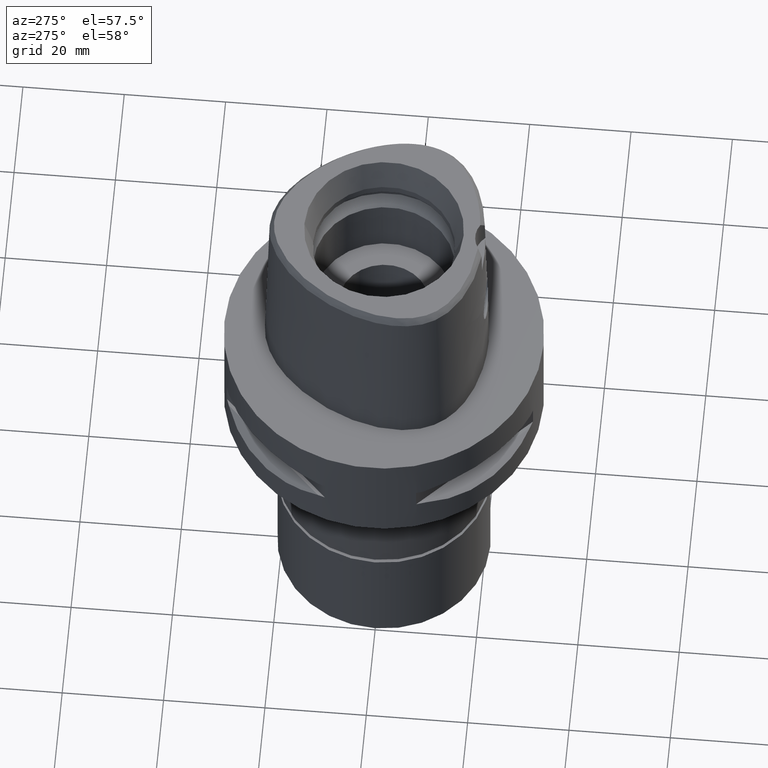
[diagram: clean part render]
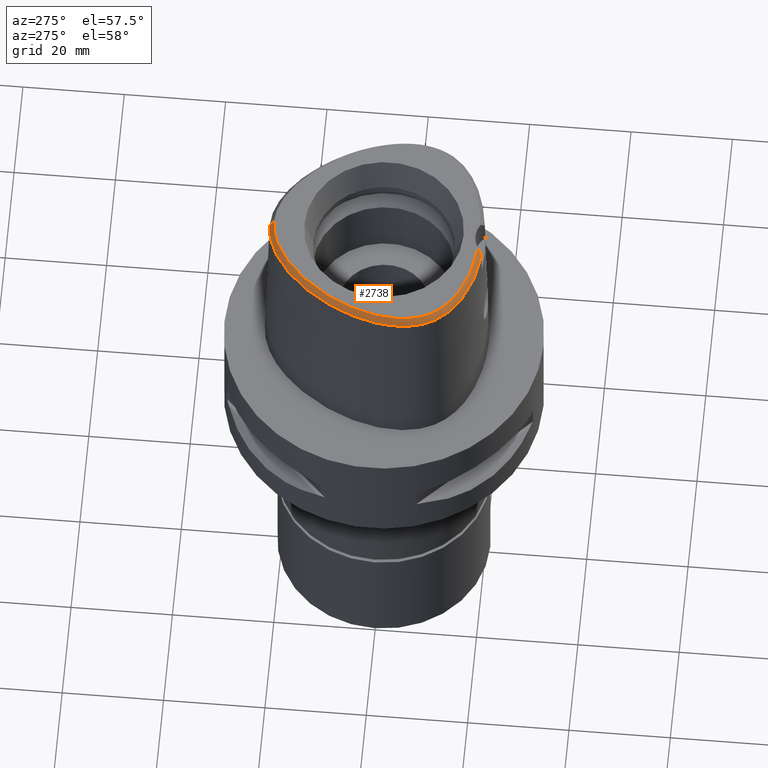
[diagram: same view with one face highlighted and labeled with its STEP entity id]
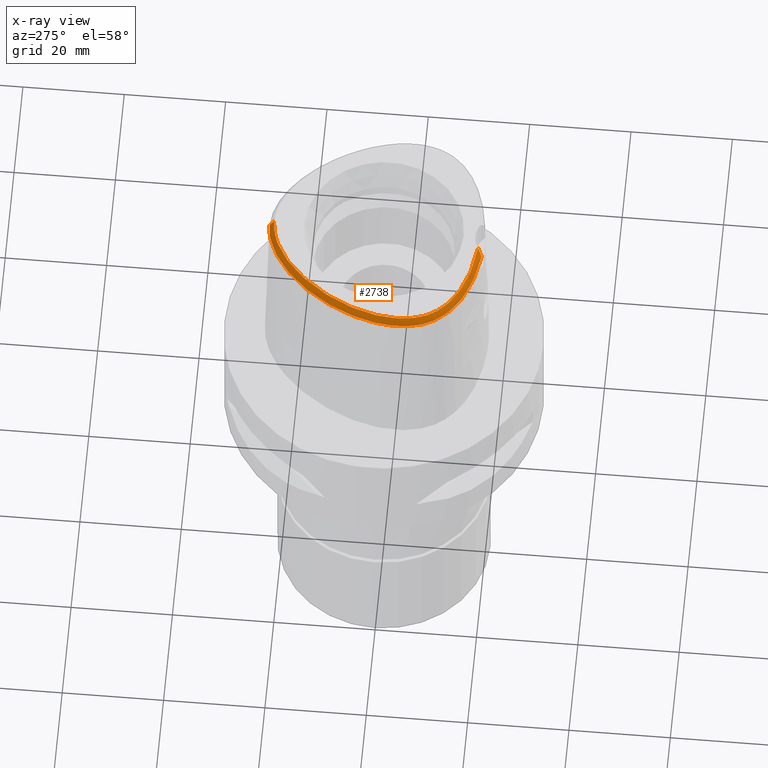
[diagram: x-ray of the same camera — body ghosted, the highlighted face saturated]
A machine part, auxiliary view. The second image highlights one B-rep face of the part: STEP entity #2738.
The next image is the same camera in x-ray: the body ghosted, the highlighted face saturated — about 0% of this face is hidden behind the body in this view.
In plain terms, the highlighted face is a freeform B-spline surface patch.
Its self-contained STEP definition (entity closure, byte-faithful):
#2 = CARTESIAN_POINT ( 'NONE',  ( -2.713933477771999669, -19.74210264567999928, 36.37830518908999977 ) ) ;
#17 = B_SPLINE_CURVE_WITH_KNOTS ( 'NONE', 3,
 ( #577, #1018, #206, #4736, #1360, #4755, #3266, #3922, #4685, #1383, #2146, #182, #2904, #1691, #272, #224, #3586, #1737, #2881, #3947, #4366, #3201, #993, #557, #2517, #1713, #2545, #621, #3632, #4388, #4015, #643, #3242, #2169, #2811, #4318, #3176, #3222, #4662, #972, #1313, #2077, #951, #2493, #3607, #596, #1288, #3991, #4296, #2473, #249, #2102, #926, #2447, #1757, #3562, #4713, #1341, #2863, #4346 ),
 .UNSPECIFIED., .F., .F.,
 ( 4, 1, 1, 1, 1, 1, 1, 1, 1, 1, 1, 1, 1, 1, 1, 1, 1, 1, 1, 1, 1, 1, 1, 1, 1, 1, 1, 1, 1, 1, 1, 1, 1, 1, 1, 1, 1, 1, 1, 1, 1, 1, 1, 1, 1, 1, 1, 1, 1, 1, 1, 1, 1, 1, 1, 1, 1, 4 ),
 ( 0.0000000000000000000, 0.005420919554200098744, 0.02318126027639999531, 0.04094160099879995407, 0.05870194172099996166, 0.07646228244330000035, 0.09422262316550000794, 0.1119829638877999356, 0.1297433046099999432, 0.1475036453321999508, 0.1652639860544999895, 0.1830243267768000281, 0.2007846674991000668, 0.2185450082212999634, 0.2363053489436000021, 0.2540656896658000097, 0.2718260303881000484, 0.2895863711103000560, 0.3073467118325999836, 0.3251070525547999912, 0.3428673932771000299, 0.3606277339994000686, 0.3783880747216000762, 0.3961484154438998928, 0.4139087561661000114, 0.4316690968884000501, 0.4494294376106000577, 0.4671897783328999854, 0.4849501190552000240, 0.5027104597774000316, 0.5204708004996999593, 0.5382311412219000779, 0.5559914819442000056, 0.5737518226664000132, 0.5915121633886999408, 0.6092725041108999484, 0.6270328448331999871, 0.6447931855555000258, 0.6625535262777000334, 0.6803138669999999610, 0.6980742077221999686, 0.7158345484445000073, 0.7335948891667000149, 0.7513552298890000536, 0.7691155706112000612, 0.7868759113336000199, 0.8046362520558000275, 0.8223965927780999552, 0.8401569335002999628, 0.8579172742224999704, 0.8756776149448000091, 0.8934379556670000166, 0.9111982963893099363, 0.9289586371115700070, 0.9467189778338299666, 0.9644793185560800453, 0.9822396592783400049, 1.000000000000000000 ),
 .UNSPECIFIED. ) ;
#22 = CARTESIAN_POINT ( 'NONE',  ( -11.68314997386000087, -17.69589950871000283, 36.37830394384000243 ) ) ;
#49 = CARTESIAN_POINT ( 'NONE',  ( -11.28558660722000084, -16.72939171935999880, 38.14351292079000189 ) ) ;
#72 = CARTESIAN_POINT ( 'NONE',  ( -7.579260225850000587, -17.92755936757999891, 38.14351263783999713 ) ) ;
#95 = CARTESIAN_POINT ( 'NONE',  ( -15.66555246984999883, -14.23148663949999992, 38.14351288593999811 ) ) ;
#119 = CARTESIAN_POINT ( 'NONE',  ( -11.55062885164999820, -17.37373024559000001, 36.96670693616000136 ) ) ;
#145 = CARTESIAN_POINT ( 'NONE',  ( -4.793558551987000094, -19.17277669614000146, 36.96670711712999946 ) ) ;
#151 = CARTESIAN_POINT ( 'NONE',  ( -8.527531195668998976, 18.37837735669999972, 38.14351294475000742 ) ) ;
#177 = CARTESIAN_POINT ( 'NONE',  ( -4.472403475189000055, 21.43832635061000147, 36.96670708015999907 ) ) ;
#182 = CARTESIAN_POINT ( 'NONE',  ( -14.21001600787764474, -15.34519100085681309, 37.99999999999730704 ) ) ;
#203 = CARTESIAN_POINT ( 'NONE',  ( -16.04648083685999893, 11.78857774169999928, 36.37830519164000265 ) ) ;
#206 = CARTESIAN_POINT ( 'NONE',  ( -3.522896839653902212, -18.70811514173524159, 38.00000000000187583 ) ) ;
#221 = CARTESIAN_POINT ( 'NONE',  ( -6.174710694951999201, 20.67571214691000137, 36.96670749985000270 ) ) ;
#224 = CARTESIAN_POINT ( 'NONE',  ( -16.93638123745795099, -13.22593246128684719, 38.00000000000067502 ) ) ;
#244 = CARTESIAN_POINT ( 'NONE',  ( -12.14865601852999966, 16.60212235002000369, 36.37830797903999525 ) ) ;
#249 = CARTESIAN_POINT ( 'NONE',  ( -5.893543501601039125, 20.13235399352011257, 38.00000000000871125 ) ) ;
#265 = CARTESIAN_POINT ( 'NONE',  ( -20.07612134433000151, -1.022415273861000173, 38.14351285349000165 ) ) ;
#271 = CARTESIAN_POINT ( 'NONE',  ( -2.127538726767999933, -19.78165970094000059, 36.37830508504000449 ) ) ;
#272 = CARTESIAN_POINT ( 'NONE',  ( -16.36032397153796936, -13.76458520345332914, 38.00000000000267875 ) ) ;
#286 = ORIENTED_EDGE ( 'NONE', *, *, #2619, .F. ) ;
#291 = CARTESIAN_POINT ( 'NONE',  ( -20.23684805378000107, 1.672403949180999883, 36.96670979241000765 ) ) ;
#294 = CARTESIAN_POINT ( 'NONE',  ( -2.315022502934000137, -19.42125977056000252, 36.96670769700000392 ) ) ;
#315 = CARTESIAN_POINT ( 'NONE',  ( -18.47091142907000005, 7.511829026717000701, 36.37830522029000235 ) ) ;
#340 = CARTESIAN_POINT ( 'NONE',  ( -20.66399898114000067, -4.313875976630000331, 37.55511004353999738 ) ) ;
#365 = CARTESIAN_POINT ( 'NONE',  ( -19.52650570592999912, -9.977010967287000653, 37.55511004840000311 ) ) ;
#394 = CARTESIAN_POINT ( 'NONE',  ( -18.60341637680999938, -10.99155121597999951, 38.14351288126000128 ) ) ;
#397 = EDGE_CURVE ( 'NONE', #2769, #4321, #425, .T. ) ;
#398 = CARTESIAN_POINT ( 'NONE',  ( 0.5898741513274999848, 21.58659915369999993, 38.14351294096999823 ) ) ;
#417 = CARTESIAN_POINT ( 'NONE',  ( -19.19931088942999864, -11.35284984327000046, 36.96670722076999738 ) ) ;
#425 = B_SPLINE_CURVE_WITH_KNOTS ( 'NONE', 3,
 ( #2337, #4287, #840, #1956, #4655, #496, #1259, #448, #2359, #2802, #4578, #2754, #4600, #1587, #2733, #546, #3823, #2386, #4559, #918, #2438, #3844, #3869 ),
 .UNSPECIFIED., .F., .F.,
 ( 4, 1, 1, 1, 1, 1, 1, 1, 1, 1, 1, 1, 1, 1, 1, 1, 1, 1, 1, 1, 4 ),
 ( 0.0000000000000000000, 0.03580973941716368569, 0.1234633994701200693, 0.1672902294965457060, 0.2111170595229713565, 0.2549438895495022006, 0.2768573045626098739, 0.2987707195758226297, 0.3206841345891406347, 0.3425975496022482525, 0.3864243796287790134, 0.4302512096550994425, 0.4740780396816303144, 0.5617316997344815599, 0.6493853597874379435, 0.7370390198402891890, 0.8246926798930352964, 0.8685195099195660573, 0.9123463399460022272, 0.9561731699724383970, 1.000000000000000000 ),
 .UNSPECIFIED. ) ;
#446 = CARTESIAN_POINT ( 'NONE',  ( -16.87657818911999996, -13.16555979848999947, 38.14351290638000336 ) ) ;
#448 = CARTESIAN_POINT ( 'NONE',  ( -18.90964971338730649, -12.28759719904381775, 36.52186244848004293 ) ) ;
#450 = CARTESIAN_POINT ( 'NONE',  ( -1.356424285937999796, 21.87238746729999761, 37.55510983794999902 ) ) ;
#468 = CARTESIAN_POINT ( 'NONE',  ( -17.38787689568000161, -12.62697982605000036, 38.14351289349000496 ) ) ;
#473 = CARTESIAN_POINT ( 'NONE',  ( -2.884845164379999716, 21.93897966065999938, 36.96670746726000090 ) ) ;
#492 = CARTESIAN_POINT ( 'NONE',  ( -19.84623036882999969, -10.91462180579999952, 36.37830391063999969 ) ) ;
#496 = CARTESIAN_POINT ( 'NONE',  ( -16.39211280191593545, -14.95758113319465643, 36.52186244848004293 ) ) ;
#498 = CARTESIAN_POINT ( 'NONE',  ( -3.014271304812878860, -18.99139391530617971, 37.59976690312910819 ) ) ;
#515 = CARTESIAN_POINT ( 'NONE',  ( -3.587205315375999959, -19.31631174517000105, 36.96670765877000520 ) ) ;
#520 = CARTESIAN_POINT ( 'NONE',  ( -7.246951498980000572, 20.48173061287999630, 36.37830420102000062 ) ) ;
#546 = CARTESIAN_POINT ( 'NONE',  ( -17.27359245833050139, 9.972912913898566600, 36.52186244847061403 ) ) ;
#548 = CARTESIAN_POINT ( 'NONE',  ( -4.224302989003999365, 20.78719542937000142, 38.14351290079000023 ) ) ;
#557 = CARTESIAN_POINT ( 'NONE',  ( -19.78262210840345858, -8.543146992552312469, 38.00000000000023448 ) ) ;
#574 = CARTESIAN_POINT ( 'NONE',  ( -5.450952368771999623, 21.41066472856999781, 36.37830468993000466 ) ) ;
#577 = CARTESIAN_POINT ( 'NONE',  ( -2.682279906006999948, -18.78035848609999903, 38.00000000000000000 ) ) ;
#593 = CARTESIAN_POINT ( 'NONE',  ( -16.32404625453000335, 10.04400496593000014, 37.55511000290999846 ) ) ;
#596 = CARTESIAN_POINT ( 'NONE',  ( -10.48962422760001623, 16.86631853279402549, 38.00000000000431299 ) ) ;
#615 = CARTESIAN_POINT ( 'NONE',  ( -5.308456721326000327, 21.09274795720000029, 36.96670741153999984 ) ) ;
#621 = CARTESIAN_POINT ( 'NONE',  ( -20.36398648679382362, -5.278470727084931369, 37.99999999999572964 ) ) ;
#638 = CARTESIAN_POINT ( 'NONE',  ( -20.19996110163000225, 0.2769081912025000425, 37.55511095265000421 ) ) ;
#642 = CARTESIAN_POINT ( 'NONE',  ( -2.106157063191000045, -19.43411303006000068, 36.96670766329000202 ) ) ;
#643 = CARTESIAN_POINT ( 'NONE',  ( -20.16012968311169828, -1.009698174524274794, 38.00000000000354561 ) ) ;
#661 = CARTESIAN_POINT ( 'NONE',  ( -21.32215985104000211, -5.340585732289999221, 36.37830518476999941 ) ) ;
#686 = CARTESIAN_POINT ( 'NONE',  ( -20.03448938977999916, -8.620354599690999819, 37.55510999084999924 ) ) ;
#712 = CARTESIAN_POINT ( 'NONE',  ( -20.91743970367999950, -8.036008068460001041, 36.37830406858000032 ) ) ;
#739 = CARTESIAN_POINT ( 'NONE',  ( -21.10942394133000022, -0.8659949474799000235, 36.37830470440000141 ) ) ;
#762 = CARTESIAN_POINT ( 'NONE',  ( -13.45997765020999992, -16.08312333279999962, 37.55510998003000367 ) ) ;
#789 = CARTESIAN_POINT ( 'NONE',  ( -8.905924309267000183, -17.56855086668000254, 38.14351253104999984 ) ) ;
#794 = CARTESIAN_POINT ( 'NONE',  ( -0.02613218482356999967, 21.95674512907000064, 37.55511008617000357 ) ) ;
#815 = CARTESIAN_POINT ( 'NONE',  ( -15.35174775798000013, -15.32882043812000106, 36.96670770909999248 ) ) ;
#820 = CARTESIAN_POINT ( 'NONE',  ( -0.6664059378786000298, 21.93671225406999881, 37.55510993221000149 ) ) ;
#821 = VERTEX_POINT ( 'NONE', #1896 ) ;
#838 = CARTESIAN_POINT ( 'NONE',  ( -19.22867489716999856, -10.59174617780999839, 37.55510991936999687 ) ) ;
#840 = CARTESIAN_POINT ( 'NONE',  ( -7.300578999875363628, -19.07170748891658008, 36.52186244848004293 ) ) ;
#842 = CARTESIAN_POINT ( 'NONE',  ( -2.130114498414000135, 22.10412363181000117, 36.96670708750000500 ) ) ;
#855 = LINE ( 'NONE', #3837, #3261 ) ;
#866 = CARTESIAN_POINT ( 'NONE',  ( -13.29412626302999989, -15.77676160329000155, 38.14351290415999784 ) ) ;
#871 = CARTESIAN_POINT ( 'NONE',  ( -0.7100694290190000535, 22.63220320152999676, 36.37830395748000001 ) ) ;
#890 = CARTESIAN_POINT ( 'NONE',  ( -6.369869859544000867, -19.26105480873999909, 36.37830402063999458 ) ) ;
#918 = CARTESIAN_POINT ( 'NONE',  ( -4.757642277158981692, 21.67478330407301002, 36.52186244848004293 ) ) ;
#920 = CARTESIAN_POINT ( 'NONE',  ( -12.63738338219000035, 15.06698125654000009, 37.55511023553000172 ) ) ;
#926 = CARTESIAN_POINT ( 'NONE',  ( -4.254559144977729801, 20.86660163697304782, 37.99999999999866418 ) ) ;
#945 = CARTESIAN_POINT ( 'NONE',  ( -7.993783991924999555, 19.60407084746000095, 36.96670712344000265 ) ) ;
#951 = CARTESIAN_POINT ( 'NONE',  ( -13.40435640711977783, 13.76268382997539597, 38.00000000000019185 ) ) ;
#969 = CARTESIAN_POINT ( 'NONE',  ( -17.73262868487000077, 8.971374234715000284, 36.37830458042000004 ) ) ;
#972 = CARTESIAN_POINT ( 'NONE',  ( -16.09805956313895692, 9.908742513516823891, 38.00000000000067502 ) ) ;
#990 = CARTESIAN_POINT ( 'NONE',  ( -13.60884338686000028, 13.92867435371999996, 37.55510985851000072 ) ) ;
#993 = CARTESIAN_POINT ( 'NONE',  ( -19.54919922642135077, -9.228169790568690800, 38.00000000000090949 ) ) ;
#1013 = CARTESIAN_POINT ( 'NONE',  ( -17.84202083517999782, 7.212090369984999860, 37.55511027864999818 ) ) ;
#1018 = CARTESIAN_POINT ( 'NONE',  ( -2.841965291530426097, -18.76757795571804266, 37.99999999999925393 ) ) ;
#1037 = CARTESIAN_POINT ( 'NONE',  ( -21.26049530334000082, -2.083345912222000162, 36.37830375934999694 ) ) ;
#1059 = CARTESIAN_POINT ( 'NONE',  ( -19.84753686135000095, 3.049702999855000041, 36.96670841134000085 ) ) ;
#1084 = CARTESIAN_POINT ( 'NONE',  ( -20.22042569888999708, -2.185700399006999639, 38.14351293712000057 ) ) ;
#1107 = CARTESIAN_POINT ( 'NONE',  ( -19.70137460140000130, -8.518241313785999580, 38.14351290067000377 ) ) ;
#1130 = CARTESIAN_POINT ( 'NONE',  ( -18.16671487717999867, -13.32408664885000071, 36.37830425241000398 ) ) ;
#1156 = CARTESIAN_POINT ( 'NONE',  ( -16.09471306840000082, -14.78043053994999845, 36.96670718706000258 ) ) ;
#1160 = CARTESIAN_POINT ( 'NONE',  ( -3.339321438839339073, -19.25325016371225217, 37.10705438595577732 ) ) ;
#1182 = CARTESIAN_POINT ( 'NONE',  ( -17.84339893378999875, -12.08506756284000083, 38.14351284504999740 ) ) ;
#1188 = CARTESIAN_POINT ( 'NONE',  ( -0.02764731091876999891, 22.65356189319999913, 36.37830451865999493 ) ) ;
#1206 = CARTESIAN_POINT ( 'NONE',  ( -20.16290144563999931, -10.26091220156000006, 36.37830438100999686 ) ) ;
#1210 = CARTESIAN_POINT ( 'NONE',  ( -2.001318328116000078, 21.41929227725000118, 38.14351289977000192 ) ) ;
#1231 = CARTESIAN_POINT ( 'NONE',  ( -17.90710221668000202, -13.09171770791999911, 36.96670713277000431 ) ) ;
#1235 = CARTESIAN_POINT ( 'NONE',  ( -3.560288794933000212, 21.38631567750000073, 37.55511012185999675 ) ) ;
#1254 = CARTESIAN_POINT ( 'NONE',  ( -6.172314810751999836, -18.23487732065999722, 38.14351291399000132 ) ) ;
#1255 = VERTEX_POINT ( 'NONE', #4656 ) ;
#1259 = CARTESIAN_POINT ( 'NONE',  ( -17.90324032096225793, -13.53935111955195403, 36.52186244848004293 ) ) ;
#1284 = CARTESIAN_POINT ( 'NONE',  ( -11.90083649954999956, 16.35731645028999992, 36.96670950725999916 ) ) ;
#1288 = CARTESIAN_POINT ( 'NONE',  ( -9.524337278001784313, 17.70558492631314351, 37.99999999999681677 ) ) ;
#1310 = CARTESIAN_POINT ( 'NONE',  ( -12.89689276004000007, 15.29935309566999990, 36.96670764931000264 ) ) ;
#1313 = CARTESIAN_POINT ( 'NONE',  ( -15.24692477331964113, 11.25717358966333137, 38.00000000000304823 ) ) ;
#1334 = CARTESIAN_POINT ( 'NONE',  ( -4.596453718281000356, 21.76389181122999972, 36.37830416985000426 ) ) ;
#1341 = CARTESIAN_POINT ( 'NONE',  ( -0.6498990081534795626, 21.67378274708054064, 37.99999999999597833 ) ) ;
#1356 = CARTESIAN_POINT ( 'NONE',  ( -6.893177574635999783, 19.88147429588000037, 37.55510999902000435 ) ) ;
#1360 = CARTESIAN_POINT ( 'NONE',  ( -6.188376196366632165, -18.31830638231197028, 37.99999999999604938 ) ) ;
#1378 = CARTESIAN_POINT ( 'NONE',  ( -16.92181749713000372, 10.40179596573999987, 36.37830421516000001 ) ) ;
#1383 = CARTESIAN_POINT ( 'NONE',  ( -12.37132652997627780, -16.34104299088423673, 38.00000000000024158 ) ) ;
#1403 = CARTESIAN_POINT ( 'NONE',  ( -20.99417054231999913, -3.250843214858999630, 36.96670707543000134 ) ) ;
#1431 = CARTESIAN_POINT ( 'NONE',  ( -20.41011867209000030, -7.071119650693000303, 37.55510994767000454 ) ) ;
#1458 = CARTESIAN_POINT ( 'NONE',  ( -20.88630527485999977, -6.255932783090999649, 36.96670738742999873 ) ) ;
#1483 = CARTESIAN_POINT ( 'NONE',  ( -20.36760417817000146, -8.722467885597000148, 36.96670708102000447 ) ) ;
#1510 = CARTESIAN_POINT ( 'NONE',  ( -19.12833371193000076, 6.042616998104000103, 36.37830452586000263 ) ) ;
#1515 = CARTESIAN_POINT ( 'NONE',  ( -3.637738201363999835, -19.56971413236999879, 36.52186244848000030 ) ) ;
#1535 = CARTESIAN_POINT ( 'NONE',  ( -10.14311691089999989, -17.16630994512000186, 38.14351267076000340 ) ) ;
#1560 = CARTESIAN_POINT ( 'NONE',  ( -10.37471630437999970, -17.82339719875999862, 36.96670873636000465 ) ) ;
#1564 = CARTESIAN_POINT ( 'NONE',  ( 0.6284997701803999304, 22.28190248005000385, 36.96670679083000266 ) ) ;
#1585 = CARTESIAN_POINT ( 'NONE',  ( -7.661712389036000381, -18.26600446169999969, 37.55511080563000093 ) ) ;
#1587 = CARTESIAN_POINT ( 'NONE',  ( -21.07430010672459630, -0.4408303445192950920, 36.52186244848004293 ) ) ;
#1589 = CARTESIAN_POINT ( 'NONE',  ( 0.4140565402993000577, 22.29306893704999837, 36.96670709362999929 ) ) ;
#1609 = CARTESIAN_POINT ( 'NONE',  ( -16.30929336767999871, -15.05490249017000082, 36.37830433761999416 ) ) ;
#1612 = CARTESIAN_POINT ( 'NONE',  ( -2.799914280748999840, 21.60107780234000074, 37.55511015714999701 ) ) ;
#1630 = CARTESIAN_POINT ( 'NONE',  ( -17.61215570503000194, -13.90814357244999933, 36.37830410669000258 ) ) ;
#1656 = CARTESIAN_POINT ( 'NONE',  ( -3.550585211292999865, -18.96997756961000192, 37.55511023959999761 ) ) ;
#1662 = CARTESIAN_POINT ( 'NONE',  ( -11.65301698056000035, 16.11251055055999970, 37.55511103547000573 ) ) ;
#1688 = CARTESIAN_POINT ( 'NONE',  ( -7.608200492794000347, 19.02375314249000127, 38.14351289476999796 ) ) ;
#1691 = CARTESIAN_POINT ( 'NONE',  ( -15.71788912669204130, -14.29843101565998431, 37.99999999999725731 ) ) ;
#1710 = CARTESIAN_POINT ( 'NONE',  ( -13.33839286779999966, 13.70913850179000093, 38.14351294336000819 ) ) ;
#1713 = CARTESIAN_POINT ( 'NONE',  ( -20.15090095365177802, -7.024227649787465388, 38.00000000000134293 ) ) ;
#1731 = CARTESIAN_POINT ( 'NONE',  ( -12.37787400434000062, 14.83460941741999939, 38.14351282174000346 ) ) ;
#1737 = CARTESIAN_POINT ( 'NONE',  ( -17.91005512243358311, -12.13778127739324120, 38.00000000000461853 ) ) ;
#1752 = CARTESIAN_POINT ( 'NONE',  ( -14.83684092276999955, 12.91000286454000090, 36.96670755243999906 ) ) ;
#1757 = CARTESIAN_POINT ( 'NONE',  ( -2.735698246182978632, 21.34559102902354510, 38.00000000000414246 ) ) ;
#1775 = CARTESIAN_POINT ( 'NONE',  ( -20.42055554332999989, -0.9702751650673999695, 37.55511013711999624 ) ) ;
#1805 = CARTESIAN_POINT ( 'NONE',  ( -20.76498974233000183, -0.9181350562736000365, 36.96670742075999527 ) ) ;
#1833 = CARTESIAN_POINT ( 'NONE',  ( -20.62684820797999663, -5.295511126859000051, 37.55511026889999471 ) ) ;
#1835 = CARTESIAN_POINT ( 'NONE',  ( -2.338537410589999865, -19.76867518845000049, 36.37830513793999643 ) ) ;
#1854 = CARTESIAN_POINT ( 'NONE',  ( -20.57882876058999955, -7.953968457059999331, 36.96670701564000439 ) ) ;
#1880 = CARTESIAN_POINT ( 'NONE',  ( -18.48589925839999992, 5.773116796478000801, 37.55511008814000462 ) ) ;
#1883 = CARTESIAN_POINT ( 'NONE',  ( -2.063393736036999826, -18.73901968828999998, 38.14351281980000152 ) ) ;
#1896 = CARTESIAN_POINT ( 'NONE',  ( -3.470663397180000190E-11, 21.68728795390000030, 38.00000000000000000 ) ) ;
#1906 = CARTESIAN_POINT ( 'NONE',  ( -12.33492876184000053, -16.26426622039999970, 38.14351291467000493 ) ) ;
#1908 = B_SPLINE_SURFACE_WITH_KNOTS ( 'NONE', 3, 3, ( 
 ( #398, #1913, #1564, #3412 ),
 ( #3483, #2688, #1589, #4182 ),
 ( #4157, #794, #2317, #1188 ),
 ( #3802, #820, #2339, #871 ),
 ( #3435, #450, #1958, #2735 ),
 ( #1210, #4204, #842, #2361 ),
 ( #3846, #1612, #473, #3120 ),
 ( #1985, #1235, #4230, #2804 ),
 ( #548, #2141, #177, #1334 ),
 ( #4342, #3170, #615, #574 ),
 ( #2829, #3532, #221, #3195 ),
 ( #2469, #1356, #3916, #520 ),
 ( #1688, #3985, #945, #3602 ),
 ( #151, #4361, #3943, #2040 ),
 ( #4681, #3626, #2512, #2490 ),
 ( #4657, #2440, #2072, #4708 ),
 ( #3965, #1662, #1284, #244 ),
 ( #1731, #920, #1310, #3260 ),
 ( #1710, #990, #3218, #4289 ),
 ( #4314, #2098, #1752, #3558 ),
 ( #3581, #2858, #2900, #203 ),
 ( #3238, #593, #4750, #1378 ),
 ( #2877, #4383, #4732, #969 ),
 ( #2120, #1013, #3892, #315 ),
 ( #3382, #1880, #4455, #1510 ),
 ( #2187, #4101, #2948, #2258 ),
 ( #2563, #2164, #1059, #4844 ),
 ( #4011, #4773, #291, #2636 ),
 ( #2237, #638, #3648, #2994 ),
 ( #265, #1775, #1805, #739 ),
 ( #1084, #2587, #3283, #1037 ),
 ( #4504, #2608, #1403, #2923 ),
 ( #4079, #340, #4407, #4800 ),
 ( #3671, #1833, #3695, #661 ),
 ( #2538, #4031, #1458, #3309 ),
 ( #3018, #1431, #3719, #4432 ),
 ( #4055, #4481, #1854, #712 ),
 ( #1107, #686, #1483, #2213 ),
 ( #3334, #4822, #2971, #3357 ),
 ( #3743, #365, #4868, #1206 ),
 ( #2731, #838, #2284, #492 ),
 ( #394, #3139, #417, #2358 ),
 ( #2708, #3843, #3821, #4200 ),
 ( #1182, #3431, #3867, #3069 ),
 ( #468, #2752, #1231, #1130 ),
 ( #446, #2309, #1981, #1630 ),
 ( #2659, #3478, #3090, #4177 ),
 ( #95, #4150, #1156, #1609 ),
 ( #3115, #4556, #815, #4598 ),
 ( #4125, #3408, #3797, #4223 ),
 ( #866, #762, #3769, #2383 ),
 ( #1906, #2004, #3499, #2334 ),
 ( #49, #4527, #119, #22 ),
 ( #1535, #3044, #1560, #2683 ),
 ( #789, #1930, #1953, #3454 ),
 ( #72, #1585, #4577, #3524 ),
 ( #1254, #2777, #4250, #890 ),
 ( #2406, #4626, #145, #3887 ),
 ( #2033, #1656, #515, #4825 ),
 ( #4847, #3385, #3361, #2 ),
 ( #3286, #4776, #294, #1835 ),
 ( #1883, #2950, #642, #271 ) ),
 .UNSPECIFIED., .F., .F., .F.,
 ( 4, 1, 1, 1, 1, 1, 1, 1, 1, 1, 1, 1, 1, 1, 1, 1, 1, 1, 1, 1, 1, 1, 1, 1, 1, 1, 1, 1, 1, 1, 1, 1, 1, 1, 1, 1, 1, 1, 1, 1, 1, 1, 1, 1, 1, 1, 1, 1, 1, 1, 1, 1, 1, 1, 1, 1, 1, 1, 1, 4 ),
 ( 4, 4 ),
 ( -0.01585043674195000044, 0.0000000000000000000, 0.01776034072165999858, 0.03552068144391999638, 0.05328102216616999870, 0.07104136288842999303, 0.08880170361069000817, 0.1065620443330000111, 0.1243223850551999909, 0.1420827257775000019, 0.1598430664997000095, 0.1776034072219000171, 0.1953637479442000002, 0.2131240886664000078, 0.2308844293887999943, 0.2486447701109999742, 0.2664051108332999851, 0.2841654515554999927, 0.3019257922778000314, 0.3196861329999999835, 0.3374464737223000221, 0.3552068144444999742, 0.3729671551668000129, 0.3907274958890999961, 0.4084878366113000037, 0.4262481773335999868, 0.4440085180557999944, 0.4617688587780999776, 0.4795291995003000407, 0.4972895402225999684, 0.5150498809447999760, 0.5328102216671000146, 0.5505705623893999423, 0.5683309031115999499, 0.5860912438338999886, 0.6038515845561001072, 0.6216119252783999238, 0.6393722660005999314, 0.6571326067228999701, 0.6748929474452000088, 0.6926532881674000164, 0.7104136288896999440, 0.7281739696118999516, 0.7459343103341999903, 0.7636946510563999979, 0.7814549917787000366, 0.7992153325008999332, 0.8169756732231999719, 0.8347360139455000105, 0.8524963546678000492, 0.8702566953900000568, 0.8880170361122000644, 0.9057773768344999921, 0.9235377175566999997, 0.9412980582790000383, 0.9590583990012000459, 0.9768187397236000047, 0.9945790804457999013, 1.000000000000000000, 1.006922200500000031 ),
 ( -0.07412512925988000434, 1.074152455493999847 ),
 .UNSPECIFIED. ) ;
#1913 = CARTESIAN_POINT ( 'NONE',  ( 0.6091869607538999976, 21.93425081687999878, 37.55510986590000044 ) ) ;
#1930 = CARTESIAN_POINT ( 'NONE',  ( -9.005028348740999888, -17.90250457875000123, 37.55511113667000700 ) ) ;
#1934 = CARTESIAN_POINT ( 'NONE',  ( -3.637738201363999835, -19.56971413236999879, 36.52186244848000030 ) ) ;
#1953 = CARTESIAN_POINT ( 'NONE',  ( -9.104132388214999594, -18.23645829081999992, 36.96670974228000262 ) ) ;
#1956 = CARTESIAN_POINT ( 'NONE',  ( -10.91891098964702955, -18.03046406390577161, 36.52186244848004293 ) ) ;
#1958 = CARTESIAN_POINT ( 'NONE',  ( -1.399738464727000142, 22.21810868793999916, 36.96670672591999818 ) ) ;
#1981 = CARTESIAN_POINT ( 'NONE',  ( -17.36696319973000158, -13.66061564778999937, 36.96670703991999574 ) ) ;
#1985 = CARTESIAN_POINT ( 'NONE',  ( -3.455445723491000098, 21.05405947234999786, 38.14351285840999850 ) ) ;
#2004 = CARTESIAN_POINT ( 'NONE',  ( -12.48415961553000031, -16.57905098851999881, 37.55510994745000630 ) ) ;
#2010 = CARTESIAN_POINT ( 'NONE',  ( -2.682279906006999948, -18.78035848609999903, 38.00000000000000000 ) ) ;
#2033 = CARTESIAN_POINT ( 'NONE',  ( -3.513965107208999683, -18.62364339404999924, 38.14351282042999713 ) ) ;
#2040 = CARTESIAN_POINT ( 'NONE',  ( -9.151010027433999383, 19.21711578810999654, 36.37830367315999780 ) ) ;
#2072 = CARTESIAN_POINT ( 'NONE',  ( -10.90288365941000137, 17.31736039645000247, 36.96670963158999967 ) ) ;
#2077 = CARTESIAN_POINT ( 'NONE',  ( -14.34402387965980452, 12.54761970512818081, 38.00000000000359535 ) ) ;
#2098 = CARTESIAN_POINT ( 'NONE',  ( -14.55620899656999967, 12.70364578847999937, 37.55511019381999915 ) ) ;
#2102 = CARTESIAN_POINT ( 'NONE',  ( -5.058220461389647760, 20.53445508814601439, 37.99999999999530331 ) ) ;
#2120 = CARTESIAN_POINT ( 'NONE',  ( -17.52757553822999981, 7.062221041619000772, 38.14351280782999964 ) ) ;
#2141 = CARTESIAN_POINT ( 'NONE',  ( -4.348353232095999665, 21.11276088998999967, 37.55510999047000098 ) ) ;
#2146 = CARTESIAN_POINT ( 'NONE',  ( -13.33457781970512102, -15.85148397417305688, 38.00000000000018474 ) ) ;
#2164 = CARTESIAN_POINT ( 'NONE',  ( -19.51481507265999937, 2.946558327433000279, 37.55511056361999778 ) ) ;
#2169 = CARTESIAN_POINT ( 'NONE',  ( -19.64434054693338183, 1.520253387635482900, 37.99999999999315747 ) ) ;
#2187 = CARTESIAN_POINT ( 'NONE',  ( -18.71666610236000139, 4.227185882876999479, 38.14351295243999829 ) ) ;
#2211 = B_SPLINE_CURVE_WITH_KNOTS ( 'NONE', 3,
 ( #2010, #498, #1160, #1934 ),
 .UNSPECIFIED., .F., .F.,
 ( 4, 4 ),
 ( 0.0000000000000000000, 1.000000000000000000 ),
 .UNSPECIFIED. ) ;
#2213 = CARTESIAN_POINT ( 'NONE',  ( -20.70071896654999932, -8.824581171502000387, 36.37830417119000259 ) ) ;
#2237 = CARTESIAN_POINT ( 'NONE',  ( -19.85864075681999807, 0.2072694349895999877, 38.14351259040999764 ) ) ;
#2258 = CARTESIAN_POINT ( 'NONE',  ( -19.69860864694000213, 4.584747520728999604, 36.37830358610000303 ) ) ;
#2284 = CARTESIAN_POINT ( 'NONE',  ( -19.53745263300000090, -10.75318399180999940, 36.96670691500000316 ) ) ;
#2309 = CARTESIAN_POINT ( 'NONE',  ( -17.12177069442000032, -13.41308772314000031, 37.55510997315000310 ) ) ;
#2317 = CARTESIAN_POINT ( 'NONE',  ( -0.02688974787116999929, 22.30515351113000122, 36.96670730241000058 ) ) ;
#2334 = CARTESIAN_POINT ( 'NONE',  ( -12.78262132289999897, -17.20862052476999793, 36.37830401299999750 ) ) ;
#2337 = CARTESIAN_POINT ( 'NONE',  ( -3.637738201363999835, -19.56971413236999879, 36.52186244848000030 ) ) ;
#2339 = CARTESIAN_POINT ( 'NONE',  ( -0.6882376834487999862, 22.28445772779999956, 36.96670694484999586 ) ) ;
#2358 = CARTESIAN_POINT ( 'NONE',  ( -19.49725814575000271, -11.53349915691999783, 36.37830439052999765 ) ) ;
#2359 = CARTESIAN_POINT ( 'NONE',  ( -19.55745547455588351, -11.29150218116781801, 36.52186244848004293 ) ) ;
#2361 = CARTESIAN_POINT ( 'NONE',  ( -2.194512583563000163, 22.44653930909999673, 36.37830418137000521 ) ) ;
#2383 = CARTESIAN_POINT ( 'NONE',  ( -13.79168042459000176, -16.69584679183000020, 36.37830413177000821 ) ) ;
#2386 = CARTESIAN_POINT ( 'NONE',  ( -10.15538788052938912, 18.47129535093986874, 36.52186244848004293 ) ) ;
#2405 = EDGE_CURVE ( 'NONE', #1255, #821, #17, .T. ) ;
#2406 = CARTESIAN_POINT ( 'NONE',  ( -4.694971630056000045, -18.48311322705999871, 38.14351289566000247 ) ) ;
#2438 = CARTESIAN_POINT ( 'NONE',  ( -2.376843896519683419, 22.39422508473729678, 36.52186244848003582 ) ) ;
#2440 = CARTESIAN_POINT ( 'NONE',  ( -10.66755537279999899, 17.06051711401000048, 37.55511108901000483 ) ) ;
#2447 = CARTESIAN_POINT ( 'NONE',  ( -3.481017203588459452, 21.13509756881544988, 38.00000000000159162 ) ) ;
#2469 = CARTESIAN_POINT ( 'NONE',  ( -6.716290612464000276, 19.58134613737999885, 38.14351289803000356 ) ) ;
#2473 = CARTESIAN_POINT ( 'NONE',  ( -6.759433772717405198, 19.65454812513382166, 37.99999999999720046 ) ) ;
#2490 = CARTESIAN_POINT ( 'NONE',  ( -10.13623084768000027, 18.44543977316000039, 36.37830571743999997 ) ) ;
#2493 = CARTESIAN_POINT ( 'NONE',  ( -12.44116897271057809, 14.89128547409747583, 37.99999999999949551 ) ) ;
#2512 = CARTESIAN_POINT ( 'NONE',  ( -9.914216367218999792, 18.17699686481999777, 36.96670806624000249 ) ) ;
#2517 = CARTESIAN_POINT ( 'NONE',  ( -19.98419490691340172, -7.809898894995436436, 37.99999999999769074 ) ) ;
#2538 = CARTESIAN_POINT ( 'NONE',  ( -20.19463589316999830, -6.171642253626999697, 38.14351285811000736 ) ) ;
#2545 = CARTESIAN_POINT ( 'NONE',  ( -20.27898581531964695, -6.181921586190170181, 37.99999999999652545 ) ) ;
#2563 = CARTESIAN_POINT ( 'NONE',  ( -19.18209328395999691, 2.843413655010999630, 38.14351271590999914 ) ) ;
#2587 = CARTESIAN_POINT ( 'NONE',  ( -20.56711556704000188, -2.151582236746000021, 37.55510987786000499 ) ) ;
#2608 = CARTESIAN_POINT ( 'NONE',  ( -20.64615151489999789, -3.266503870035000201, 37.55510998844000170 ) ) ;
#2619 = EDGE_CURVE ( 'NONE', #1255, #2769, #2211, .T. ) ;
#2636 = CARTESIAN_POINT ( 'NONE',  ( -20.57424816049000071, 1.759045240824000045, 36.37830842658000563 ) ) ;
#2659 = CARTESIAN_POINT ( 'NONE',  ( -16.30419073224999948, -13.70078835968999975, 38.14351291536999611 ) ) ;
#2683 = CARTESIAN_POINT ( 'NONE',  ( -10.49051600111999960, -18.15194082556999788, 36.37830676915999817 ) ) ;
#2688 = CARTESIAN_POINT ( 'NONE',  ( 0.4011187359881999703, 21.94504763698000005, 37.55510999626999791 ) ) ;
#2708 = CARTESIAN_POINT ( 'NONE',  ( -18.24770220929999809, -11.53941310199000014, 38.14351292365999768 ) ) ;
#2731 = CARTESIAN_POINT ( 'NONE',  ( -18.91989716134000332, -10.43030836382000004, 38.14351292373000035 ) ) ;
#2733 = CARTESIAN_POINT ( 'NONE',  ( -19.88562090098147195, 4.345879983791940404, 36.52186244848004293 ) ) ;
#2735 = CARTESIAN_POINT ( 'NONE',  ( -1.443052643516000044, 22.56382990856999626, 36.37830361388000000 ) ) ;
#2738 = ADVANCED_FACE ( 'NONE', ( #4580 ), #1908, .F. ) ;
#2752 = CARTESIAN_POINT ( 'NONE',  ( -17.64748955618000181, -12.85934876698000018, 37.55511001312999753 ) ) ;
#2754 = CARTESIAN_POINT ( 'NONE',  ( -21.14970188363361459, -6.717195958887933749, 36.52186244848004293 ) ) ;
#2769 = VERTEX_POINT ( 'NONE', #1515 ) ;
#2777 = CARTESIAN_POINT ( 'NONE',  ( -6.238166493682999914, -18.57693648336000081, 37.55510994953999671 ) ) ;
#2802 = CARTESIAN_POINT ( 'NONE',  ( -20.09619618740887859, -10.23243843868043434, 36.52186244848004293 ) ) ;
#2804 = CARTESIAN_POINT ( 'NONE',  ( -3.769974937816999994, 22.05082808781000026, 36.37830464877000480 ) ) ;
#2811 = CARTESIAN_POINT ( 'NONE',  ( -19.26324493738537313, 2.868570891457065120, 38.00000000000402167 ) ) ;
#2829 = CARTESIAN_POINT ( 'NONE',  ( -5.854492503814999971, 20.05688758582000020, 38.14351284251000607 ) ) ;
#2858 = CARTESIAN_POINT ( 'NONE',  ( -15.46627201347999936, 11.40295703059000054, 37.55511027078999575 ) ) ;
#2863 = CARTESIAN_POINT ( 'NONE',  ( -0.2181979014508420855, 21.68728795389015218, 37.99999999999807443 ) ) ;
#2877 = CARTESIAN_POINT ( 'NONE',  ( -16.81159854723000180, 8.477684028312998166, 38.14351286445999989 ) ) ;
#2881 = CARTESIAN_POINT ( 'NONE',  ( -18.31748213707525963, -11.58791794387494178, 37.99999999999793232 ) ) ;
#2900 = CARTESIAN_POINT ( 'NONE',  ( -15.75637642516999826, 11.59576738615000124, 36.96670773121999787 ) ) ;
#2904 = CARTESIAN_POINT ( 'NONE',  ( -15.00295592773521136, -14.82617991125904489, 38.00000000000213163 ) ) ;
#2923 = CARTESIAN_POINT ( 'NONE',  ( -21.34218956974000037, -3.235182559681999859, 36.37830416242000098 ) ) ;
#2948 = CARTESIAN_POINT ( 'NONE',  ( -19.37129446540999922, 4.465560308111999888, 36.96670670822000204 ) ) ;
#2950 = CARTESIAN_POINT ( 'NONE',  ( -2.084775399614000158, -19.08656635918000077, 37.55511024154999689 ) ) ;
#2971 = CARTESIAN_POINT ( 'NONE',  ( -20.12223956557000193, -9.442642856445001343, 36.96670738761000052 ) ) ;
#2994 = CARTESIAN_POINT ( 'NONE',  ( -20.88260179126000082, 0.4161857036282999855, 36.37830767712999602 ) ) ;
#3018 = CARTESIAN_POINT ( 'NONE',  ( -20.06728233800999561, -7.009101198463000948, 38.14351291460000226 ) ) ;
#3044 = CARTESIAN_POINT ( 'NONE',  ( -10.25891660763999980, -17.49485357193999846, 37.55511070355999692 ) ) ;
#3069 = CARTESIAN_POINT ( 'NONE',  ( -18.66327007789000092, -12.73344627066000001, 36.37830479976000220 ) ) ;
#3086 = DIRECTION ( 'NONE',  ( -1.159485092586014843E-11, -0.5092834681090075977, 0.8605988316927122295 ) ) ;
#3090 = CARTESIAN_POINT ( 'NONE',  ( -16.76448330776000262, -14.22392249373000084, 36.96670697519999749 ) ) ;
#3115 = CARTESIAN_POINT ( 'NONE',  ( -14.95451261957999911, -14.75636872928000010, 38.14351281343999744 ) ) ;
#3120 = CARTESIAN_POINT ( 'NONE',  ( -2.969776048011000036, 22.27688151899000246, 36.37830477738000212 ) ) ;
#3139 = CARTESIAN_POINT ( 'NONE',  ( -18.90136363312000256, -11.17220052963000043, 37.55511005102000155 ) ) ;
#3170 = CARTESIAN_POINT ( 'NONE',  ( -5.165961073880999344, 20.77483118583000277, 37.55511013314999502 ) ) ;
#3176 = CARTESIAN_POINT ( 'NONE',  ( -18.24302769442235572, 5.671232572958346374, 37.99999999999578648 ) ) ;
#3183 = EDGE_LOOP ( 'NONE', ( #4395, #4689, #4726, #286 ) ) ;
#3195 = CARTESIAN_POINT ( 'NONE',  ( -6.334819790520999305, 20.98512442746000062, 36.37830482850999658 ) ) ;
#3201 = CARTESIAN_POINT ( 'NONE',  ( -19.28591707036908787, -9.869682450886745784, 37.99999999999646150 ) ) ;
#3218 = CARTESIAN_POINT ( 'NONE',  ( -13.87929390591000001, 14.14821020566000165, 36.96670677366000035 ) ) ;
#3222 = CARTESIAN_POINT ( 'NONE',  ( -17.60426951087010394, 7.098774535281679121, 37.99999999999945288 ) ) ;
#3238 = CARTESIAN_POINT ( 'NONE',  ( -16.02516063323000139, 9.865109466025998586, 38.14351289678000256 ) ) ;
#3240 = CARTESIAN_POINT ( 'NONE',  ( -1.479174054511000190E-11, 22.56201468012000078, 36.52186680743999858 ) ) ;
#3242 = CARTESIAN_POINT ( 'NONE',  ( -19.94188961899221724, 0.2242544969876656968, 37.99999999999894129 ) ) ;
#3260 = CARTESIAN_POINT ( 'NONE',  ( -13.15640213788999979, 15.53172493480000149, 36.37830506308999645 ) ) ;
#3261 = VECTOR ( 'NONE', #3086, 1000.000000000000227 ) ;
#3266 = CARTESIAN_POINT ( 'NONE',  ( -8.930096025510446012, -17.65000298921147603, 37.99999999999974420 ) ) ;
#3283 = CARTESIAN_POINT ( 'NONE',  ( -20.91380543519000312, -2.117464074483999870, 36.96670681860999963 ) ) ;
#3286 = CARTESIAN_POINT ( 'NONE',  ( -2.267992687621999792, -18.72642893476000125, 38.14351281512000469 ) ) ;
#3309 = CARTESIAN_POINT ( 'NONE',  ( -21.23213996570999740, -6.298078047823000070, 36.37830465208000419 ) ) ;
#3334 = CARTESIAN_POINT ( 'NONE',  ( -19.46961029306000057, -9.198381865736999785, 38.14351285808999847 ) ) ;
#3357 = CARTESIAN_POINT ( 'NONE',  ( -20.44855420181999861, -9.564773351798999457, 36.37830465236999800 ) ) ;
#3361 = CARTESIAN_POINT ( 'NONE',  ( -2.686611346653999810, -19.39495659528000004, 36.96670772958999152 ) ) ;
#3382 = CARTESIAN_POINT ( 'NONE',  ( -18.16468203163000084, 5.638366695664999817, 38.14351286928000206 ) ) ;
#3385 = CARTESIAN_POINT ( 'NONE',  ( -2.659289215534999862, -19.04781054488000080, 37.55511027009000458 ) ) ;
#3408 = CARTESIAN_POINT ( 'NONE',  ( -14.34789202416000009, -15.56963479514999982, 37.55511013194999492 ) ) ;
#3412 = CARTESIAN_POINT ( 'NONE',  ( 0.6478125796067999431, 22.62955414322999914, 36.37830371575999777 ) ) ;
#3431 = CARTESIAN_POINT ( 'NONE',  ( -18.11668931516000214, -12.30119379877999819, 37.55511016328999574 ) ) ;
#3435 = CARTESIAN_POINT ( 'NONE',  ( -1.313110107149999983, 21.52666624667000050, 38.14351294999000430 ) ) ;
#3454 = CARTESIAN_POINT ( 'NONE',  ( -9.203236427689999388, -18.57041200288000127, 36.37830834790000267 ) ) ;
#3478 = CARTESIAN_POINT ( 'NONE',  ( -16.53433702000999972, -13.96235542670999941, 37.55510994528999902 ) ) ;
#3483 = CARTESIAN_POINT ( 'NONE',  ( 0.3881809316770999385, 21.59702633690000084, 38.14351289892000096 ) ) ;
#3499 = CARTESIAN_POINT ( 'NONE',  ( -12.63339046921000097, -16.89383575664000148, 36.96670698021999613 ) ) ;
#3524 = CARTESIAN_POINT ( 'NONE',  ( -7.826616715406998992, -18.94289464993000038, 36.37830714120000408 ) ) ;
#3532 = CARTESIAN_POINT ( 'NONE',  ( -6.014601599383999186, 20.36629986636999590, 37.55511017117999728 ) ) ;
#3558 = CARTESIAN_POINT ( 'NONE',  ( -15.11747284896999943, 13.11635994059000154, 36.37830491105999897 ) ) ;
#3562 = CARTESIAN_POINT ( 'NONE',  ( -2.017025177696547988, 21.50280829367525470, 37.99999999999817391 ) ) ;
#3581 = CARTESIAN_POINT ( 'NONE',  ( -15.17616760179000046, 11.21014667504000073, 38.14351281037000518 ) ) ;
#3586 = CARTESIAN_POINT ( 'NONE',  ( -17.45119705494008855, -12.68365517585188051, 38.00000000000578382 ) ) ;
#3602 = CARTESIAN_POINT ( 'NONE',  ( -8.186575741490001334, 19.89422969994000212, 36.37830423777000277 ) ) ;
#3607 = CARTESIAN_POINT ( 'NONE',  ( -11.46564124494325831, 15.92741340513678594, 37.99999999999620570 ) ) ;
#3626 = CARTESIAN_POINT ( 'NONE',  ( -9.692201886753998963, 17.90855395647000137, 37.55511041503999792 ) ) ;
#3632 = CARTESIAN_POINT ( 'NONE',  ( -20.40060226222896134, -4.311417605381822504, 38.00000000000574119 ) ) ;
#3648 = CARTESIAN_POINT ( 'NONE',  ( -20.54128144645000020, 0.3465469474153999863, 36.96670931488999656 ) ) ;
#3671 = CARTESIAN_POINT ( 'NONE',  ( -20.27919238644000188, -5.272973824142999533, 38.14351281097000168 ) ) ;
#3695 = CARTESIAN_POINT ( 'NONE',  ( -20.97450402951000115, -5.318048429573999591, 36.96670772683999928 ) ) ;
#3719 = CARTESIAN_POINT ( 'NONE',  ( -20.75295500616999789, -7.133138102923000545, 36.96670698074999706 ) ) ;
#3743 = CARTESIAN_POINT ( 'NONE',  ( -19.20830783606999859, -9.835060350151001884, 38.14351288210000490 ) ) ;
#3769 = CARTESIAN_POINT ( 'NONE',  ( -13.62582903740000084, -16.38948506231999858, 36.96670705590000239 ) ) ;
#3797 = CARTESIAN_POINT ( 'NONE',  ( -14.53024417301999804, -15.86647981063000046, 36.96670740873999961 ) ) ;
#3802 = CARTESIAN_POINT ( 'NONE',  ( -0.6445741923083999625, 21.58896678033999805, 38.14351291957999734 ) ) ;
#3821 = CARTESIAN_POINT ( 'NONE',  ( -18.81989763366999568, -11.93715281698000119, 36.96670691549000054 ) ) ;
#3823 = CARTESIAN_POINT ( 'NONE',  ( -13.70645028111677277, 15.04851272300977705, 36.52186244848004293 ) ) ;
#3837 = CARTESIAN_POINT ( 'NONE',  ( -1.479174054511000190E-11, 22.56201468012000078, 36.52186680743999858 ) ) ;
#3843 = CARTESIAN_POINT ( 'NONE',  ( -18.53379992147999999, -11.73828295949000022, 37.55510991957000044 ) ) ;
#3844 = CARTESIAN_POINT ( 'NONE',  ( -0.7901461696978493432, 22.56201478746796241, 36.52186244848003582 ) ) ;
#3846 = CARTESIAN_POINT ( 'NONE',  ( -2.714983397117999964, 21.26317594401999855, 38.14351284702999578 ) ) ;
#3867 = CARTESIAN_POINT ( 'NONE',  ( -18.38997969651999753, -12.51732003471999910, 36.96670748151999675 ) ) ;
#3869 = CARTESIAN_POINT ( 'NONE',  ( -1.479174054511000190E-11, 22.56201468012000078, 36.52186680743999858 ) ) ;
#3887 = CARTESIAN_POINT ( 'NONE',  ( -4.842852012952000074, -19.51760843067999929, 36.37830422785999929 ) ) ;
#3892 = CARTESIAN_POINT ( 'NONE',  ( -18.15646613211999849, 7.361959698350999837, 36.96670774946999671 ) ) ;
#3916 = CARTESIAN_POINT ( 'NONE',  ( -7.070064536808000177, 20.18160245437999833, 36.96670710002000249 ) ) ;
#3922 = CARTESIAN_POINT ( 'NONE',  ( -10.17136073855357203, -17.24644253470196276, 37.99999999999774047 ) ) ;
#3943 = CARTESIAN_POINT ( 'NONE',  ( -8.943183750178999247, 18.93753631096999612, 36.96670676368999864 ) ) ;
#3947 = CARTESIAN_POINT ( 'NONE',  ( -18.67608643721584372, -11.03561202290853949, 37.99999999999998579 ) ) ;
#3965 = CARTESIAN_POINT ( 'NONE',  ( -11.40519746158000025, 15.86770465084000392, 38.14351256368999543 ) ) ;
#3985 = CARTESIAN_POINT ( 'NONE',  ( -7.800992242359000350, 19.31391199497000244, 37.55511000911000252 ) ) ;
#3991 = CARTESIAN_POINT ( 'NONE',  ( -8.578220530113911835, 18.44656747109663542, 38.00000000000481748 ) ) ;
#4011 = CARTESIAN_POINT ( 'NONE',  ( -19.56204784036999911, 1.499121365896999958, 38.14351252408000192 ) ) ;
#4015 = CARTESIAN_POINT ( 'NONE',  ( -20.30498420086304634, -2.177378896257972762, 38.00000000000184031 ) ) ;
#4031 = CARTESIAN_POINT ( 'NONE',  ( -20.54047058401999948, -6.213787518359000117, 37.55511012276999594 ) ) ;
#4055 = CARTESIAN_POINT ( 'NONE',  ( -19.90160687441000320, -7.789889234259000261, 38.14351290975000097 ) ) ;
#4079 = CARTESIAN_POINT ( 'NONE',  ( -20.31563558197000319, -4.310624582428999929, 38.14351288368000326 ) ) ;
#4101 = CARTESIAN_POINT ( 'NONE',  ( -19.04398028389000075, 4.346373095494000083, 37.55510983033000372 ) ) ;
#4125 = CARTESIAN_POINT ( 'NONE',  ( -14.16553987530000036, -15.27278977966999918, 38.14351285515000711 ) ) ;
#4150 = CARTESIAN_POINT ( 'NONE',  ( -15.88013276912999672, -14.50595858972000052, 37.55511003649999680 ) ) ;
#4157 = CARTESIAN_POINT ( 'NONE',  ( -0.02537462177597000004, 21.60833674700000273, 38.14351286992000212 ) ) ;
#4177 = CARTESIAN_POINT ( 'NONE',  ( -16.99462959552000285, -14.48548956075000049, 36.37830400512000040 ) ) ;
#4182 = CARTESIAN_POINT ( 'NONE',  ( 0.4269943446104000340, 22.64109023712999758, 36.37830419098000334 ) ) ;
#4200 = CARTESIAN_POINT ( 'NONE',  ( -19.10599534586000203, -12.13602267447000038, 36.37830391140999353 ) ) ;
#4204 = CARTESIAN_POINT ( 'NONE',  ( -2.065716413265000106, 21.76170795452999940, 37.55510999362999769 ) ) ;
#4223 = CARTESIAN_POINT ( 'NONE',  ( -14.71259632187000044, -16.16332482611000287, 36.37830468554000163 ) ) ;
#4230 = CARTESIAN_POINT ( 'NONE',  ( -3.665131866374999881, 21.71857188265000005, 36.96670738531999945 ) ) ;
#4250 = CARTESIAN_POINT ( 'NONE',  ( -6.304018176612999902, -18.91899564604999995, 36.96670698508999919 ) ) ;
#4284 = EDGE_CURVE ( 'NONE', #4321, #821, #855, .T. ) ;
#4287 = CARTESIAN_POINT ( 'NONE',  ( -4.467522189394952825, -19.48130287050682696, 36.52186244848004293 ) ) ;
#4289 = CARTESIAN_POINT ( 'NONE',  ( -14.14974442497000062, 14.36774605758999890, 36.37830368880999998 ) ) ;
#4296 = CARTESIAN_POINT ( 'NONE',  ( -7.655222869372170891, 19.09452359226090934, 37.99999999999290878 ) ) ;
#4314 = CARTESIAN_POINT ( 'NONE',  ( -14.27557707038000068, 12.49728871243000050, 38.14351283520000635 ) ) ;
#4318 = CARTESIAN_POINT ( 'NONE',  ( -18.79649882724560328, 4.256255933891246457, 37.99999999999237588 ) ) ;
#4321 = VERTEX_POINT ( 'NONE', #3240 ) ;
#4342 = CARTESIAN_POINT ( 'NONE',  ( -5.023465426436000136, 20.45691441444999725, 38.14351285476000442 ) ) ;
#4346 = CARTESIAN_POINT ( 'NONE',  ( -3.470663397180000190E-11, 21.68728795390000030, 38.00000000000000000 ) ) ;
#4361 = CARTESIAN_POINT ( 'NONE',  ( -8.735357472923999111, 18.65795683384000014, 37.55510985421999948 ) ) ;
#4366 = CARTESIAN_POINT ( 'NONE',  ( -18.99520880203991524, -10.46968343926049982, 38.00000000000169820 ) ) ;
#4383 = CARTESIAN_POINT ( 'NONE',  ( -17.11860859311000027, 8.642247430447000056, 37.55511010310999609 ) ) ;
#4388 = CARTESIAN_POINT ( 'NONE',  ( -20.38301517463144563, -3.278344853327695763, 38.00000000000238032 ) ) ;
#4395 = ORIENTED_EDGE ( 'NONE', *, *, #2405, .T. ) ;
#4407 = CARTESIAN_POINT ( 'NONE',  ( -21.01236238032000259, -4.317127370829999755, 36.96670720340999594 ) ) ;
#4432 = CARTESIAN_POINT ( 'NONE',  ( -21.09579134023999814, -7.195156555151999811, 36.37830401381999934 ) ) ;
#4455 = CARTESIAN_POINT ( 'NONE',  ( -18.80711648516999901, 5.907866897291000896, 36.96670730699999297 ) ) ;
#4481 = CARTESIAN_POINT ( 'NONE',  ( -20.24021781749999960, -7.871928845658999307, 37.55510996268999691 ) ) ;
#4504 = CARTESIAN_POINT ( 'NONE',  ( -20.29813248748000021, -3.282164525210999884, 38.14351290145000206 ) ) ;
#4527 = CARTESIAN_POINT ( 'NONE',  ( -11.41810772943000174, -17.05156098248000163, 37.55510992846999585 ) ) ;
#4556 = CARTESIAN_POINT ( 'NONE',  ( -15.15313018877999873, -15.04259458370000146, 37.55511026127000207 ) ) ;
#4559 = CARTESIAN_POINT ( 'NONE',  ( -7.108589416785251025, 20.52412325828990092, 36.52186244848004293 ) ) ;
#4577 = CARTESIAN_POINT ( 'NONE',  ( -7.744164552221000086, -18.60444955580999604, 36.96670897341000028 ) ) ;
#4578 = CARTESIAN_POINT ( 'NONE',  ( -20.67704215116206612, -8.734985316449600745, 36.52186244848004293 ) ) ;
#4580 = FACE_OUTER_BOUND ( 'NONE', #3183, .T. ) ;
#4598 = CARTESIAN_POINT ( 'NONE',  ( -15.55036532717999975, -15.61504629253999887, 36.37830515693000422 ) ) ;
#4600 = CARTESIAN_POINT ( 'NONE',  ( -21.32871527669686529, -4.105831244394301471, 36.52186244848004293 ) ) ;
#4626 = CARTESIAN_POINT ( 'NONE',  ( -4.744265091021000025, -18.82794496160000008, 37.55511000639999963 ) ) ;
#4655 = CARTESIAN_POINT ( 'NONE',  ( -14.22011356155931949, -16.41829364186007112, 36.52186244848004293 ) ) ;
#4656 = CARTESIAN_POINT ( 'NONE',  ( -2.682279906006999948, -18.78035848609999903, 38.00000000000000000 ) ) ;
#4657 = CARTESIAN_POINT ( 'NONE',  ( -10.43222708619000016, 16.80367383157999939, 38.14351254642999578 ) ) ;
#4662 = CARTESIAN_POINT ( 'NONE',  ( -16.88647904405218370, 8.517821442302896173, 38.00000000000262190 ) ) ;
#4681 = CARTESIAN_POINT ( 'NONE',  ( -9.470187406288999910, 17.64011104812999875, 38.14351276382999600 ) ) ;
#4685 = CARTESIAN_POINT ( 'NONE',  ( -11.31790883121150770, -16.80796958613323966, 37.99999999999865707 ) ) ;
#4689 = ORIENTED_EDGE ( 'NONE', *, *, #4284, .F. ) ;
#4708 = CARTESIAN_POINT ( 'NONE',  ( -11.13821194602000020, 17.57420367888000001, 36.37830817416999452 ) ) ;
#4713 = CARTESIAN_POINT ( 'NONE',  ( -1.323674540694184554, 21.61098849315740367, 37.99999999999866418 ) ) ;
#4726 = ORIENTED_EDGE ( 'NONE', *, *, #397, .F. ) ;
#4732 = CARTESIAN_POINT ( 'NONE',  ( -17.42561863898999874, 8.806810832580998394, 36.96670734175999939 ) ) ;
#4736 = CARTESIAN_POINT ( 'NONE',  ( -4.706994425064450205, -18.56721852572668396, 38.00000000000486011 ) ) ;
#4750 = CARTESIAN_POINT ( 'NONE',  ( -16.62293187582999821, 10.22290046582999956, 36.96670710904000146 ) ) ;
#4755 = CARTESIAN_POINT ( 'NONE',  ( -7.599370508970308968, -18.01010694911608923, 38.00000000000193268 ) ) ;
#4773 = CARTESIAN_POINT ( 'NONE',  ( -19.89944794706999787, 1.585762657539000031, 37.55511115825000701 ) ) ;
#4776 = CARTESIAN_POINT ( 'NONE',  ( -2.291507595277999965, -19.07384435266000011, 37.55511025605999720 ) ) ;
#4800 = CARTESIAN_POINT ( 'NONE',  ( -21.36072577950000095, -4.320378765031000157, 36.37830436327999450 ) ) ;
#4822 = CARTESIAN_POINT ( 'NONE',  ( -19.79592492931000081, -9.320512361090999676, 37.55511012284999595 ) ) ;
#4825 = CARTESIAN_POINT ( 'NONE',  ( -3.623825419460000141, -19.66264592073999751, 36.37830507793999857 ) ) ;
#4844 = CARTESIAN_POINT ( 'NONE',  ( -20.18025865003999897, 3.152847672277000246, 36.37830625906000392 ) ) ;
#4847 = CARTESIAN_POINT ( 'NONE',  ( -2.631967084417000002, -18.70066449448000157, 38.14351281059000343 ) ) ;
#4868 = CARTESIAN_POINT ( 'NONE',  ( -19.84470357578999966, -10.11896158442000093, 36.96670721470999155 ) ) ;